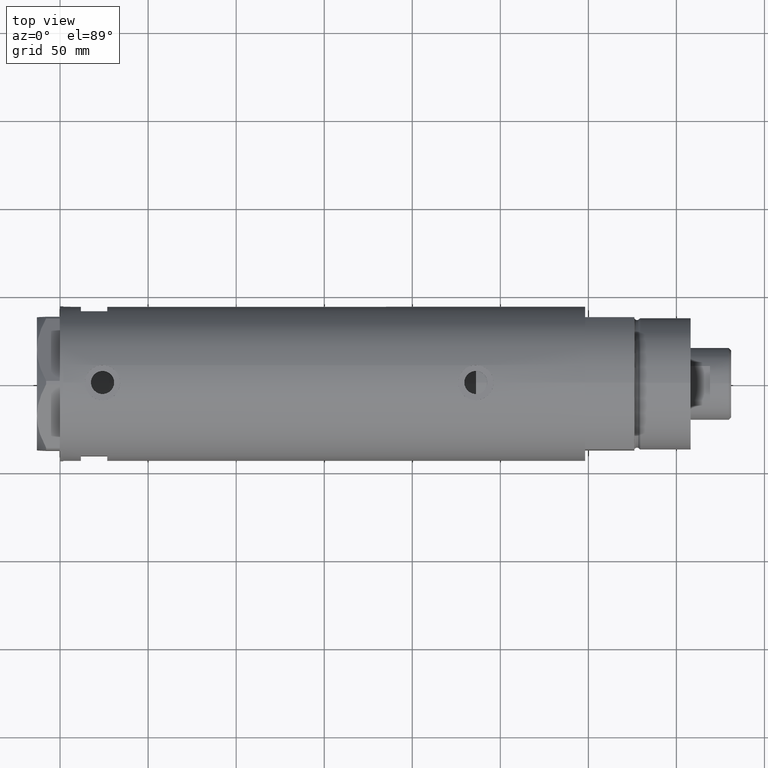
[diagram: clean part render]
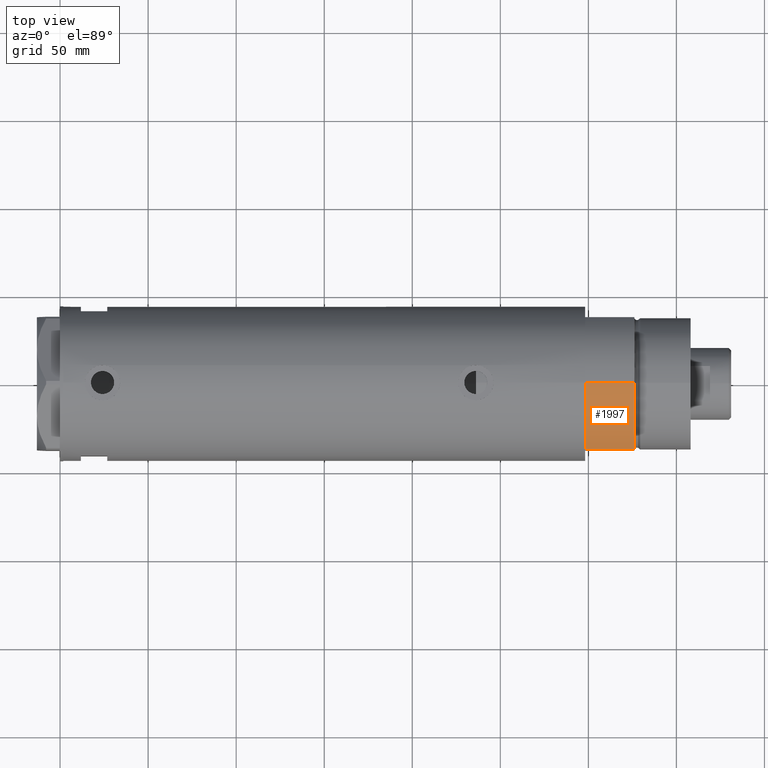
[diagram: same view with one face highlighted and labeled with its STEP entity id]
A machine part, top view. The second image highlights one B-rep face of the part: STEP entity #1997.
In plain terms, the highlighted cylindrical surface (partial cylindrical patch) has radius 44 mm, axis along (-1, -0, 0).
Its self-contained STEP definition (entity closure, byte-faithful):
#70 = CARTESIAN_POINT ( 'NONE',  ( -23.01629857296780557, -37.50000000000000000, 0.000000000000000000 ) ) ;
#179 = AXIS2_PLACEMENT_3D ( 'NONE', #1237, #1979, #3391 ) ;
#210 = CARTESIAN_POINT ( 'NONE',  ( -23.01629857296780557, -37.50000000000000000, 27.89999999999999858 ) ) ;
#328 = EDGE_CURVE ( 'NONE', #2796, #2706, #387, .T. ) ;
#387 = CIRCLE ( 'NONE', #1779, 44.00000000000000000 ) ;
#430 = CARTESIAN_POINT ( 'NONE',  ( -44.00000000000000000, 0.000000000000000000, 0.000000000000000000 ) ) ;
#506 = FACE_OUTER_BOUND ( 'NONE', #2398, .T. ) ;
#537 = VECTOR ( 'NONE', #1485, 1000.000000000000000 ) ;
#715 = VERTEX_POINT ( 'NONE', #430 ) ;
#1033 = DIRECTION ( 'NONE',  ( -0.000000000000000000, -0.000000000000000000, -1.000000000000000000 ) ) ;
#1163 = DIRECTION ( 'NONE',  ( 1.000000000000000000, 0.000000000000000000, 0.000000000000000000 ) ) ;
#1237 = CARTESIAN_POINT ( 'NONE',  ( 0.000000000000000000, 0.000000000000000000, 0.000000000000000000 ) ) ;
#1485 = DIRECTION ( 'NONE',  ( -0.000000000000000000, -0.000000000000000000, 1.000000000000000000 ) ) ;
#1495 = CIRCLE ( 'NONE', #179, 44.00000000000000000 ) ;
#1516 = DIRECTION ( 'NONE',  ( 0.000000000000000000, 0.000000000000000000, 1.000000000000000000 ) ) ;
#1524 = EDGE_CURVE ( 'NONE', #1782, #2706, #1546, .T. ) ;
#1528 = CARTESIAN_POINT ( 'NONE',  ( -23.01629857296780557, -37.50000000000000000, 0.000000000000000000 ) ) ;
#1546 = LINE ( 'NONE', #1528, #537 ) ;
#1617 = CARTESIAN_POINT ( 'NONE',  ( -44.00000000000000000, 0.000000000000000000, 27.89999999999999858 ) ) ;
#1779 = AXIS2_PLACEMENT_3D ( 'NONE', #2629, #1516, #1163 ) ;
#1782 = VERTEX_POINT ( 'NONE', #70 ) ;
#1979 = DIRECTION ( 'NONE',  ( 0.000000000000000000, 0.000000000000000000, 1.000000000000000000 ) ) ;
#1997 = ADVANCED_FACE ( 'NONE', ( #506 ), #2337, .T. ) ;
#2013 = LINE ( 'NONE', #1617, #4080 ) ;
#2088 = CARTESIAN_POINT ( 'NONE',  ( -44.00000000000000000, 0.000000000000000000, 27.89999999999999858 ) ) ;
#2183 = ORIENTED_EDGE ( 'NONE', *, *, #328, .F. ) ;
#2273 = ORIENTED_EDGE ( 'NONE', *, *, #2579, .T. ) ;
#2279 = DIRECTION ( 'NONE',  ( -0.000000000000000000, -0.000000000000000000, -1.000000000000000000 ) ) ;
#2337 = CYLINDRICAL_SURFACE ( 'NONE', #4516, 44.00000000000000000 ) ;
#2398 = EDGE_LOOP ( 'NONE', ( #2183, #4508, #2273, #2639 ) ) ;
#2579 = EDGE_CURVE ( 'NONE', #715, #1782, #1495, .T. ) ;
#2629 = CARTESIAN_POINT ( 'NONE',  ( 0.000000000000000000, 0.000000000000000000, 27.89999999999999858 ) ) ;
#2639 = ORIENTED_EDGE ( 'NONE', *, *, #1524, .T. ) ;
#2706 = VERTEX_POINT ( 'NONE', #210 ) ;
#2796 = VERTEX_POINT ( 'NONE', #2088 ) ;
#3338 = CARTESIAN_POINT ( 'NONE',  ( 0.000000000000000000, 0.000000000000000000, 27.89999999999999858 ) ) ;
#3363 = DIRECTION ( 'NONE',  ( -1.000000000000000000, 0.000000000000000000, 0.000000000000000000 ) ) ;
#3391 = DIRECTION ( 'NONE',  ( 1.000000000000000000, 0.000000000000000000, 0.000000000000000000 ) ) ;
#3896 = EDGE_CURVE ( 'NONE', #2796, #715, #2013, .T. ) ;
#4080 = VECTOR ( 'NONE', #1033, 1000.000000000000000 ) ;
#4508 = ORIENTED_EDGE ( 'NONE', *, *, #3896, .T. ) ;
#4516 = AXIS2_PLACEMENT_3D ( 'NONE', #3338, #2279, #3363 ) ;